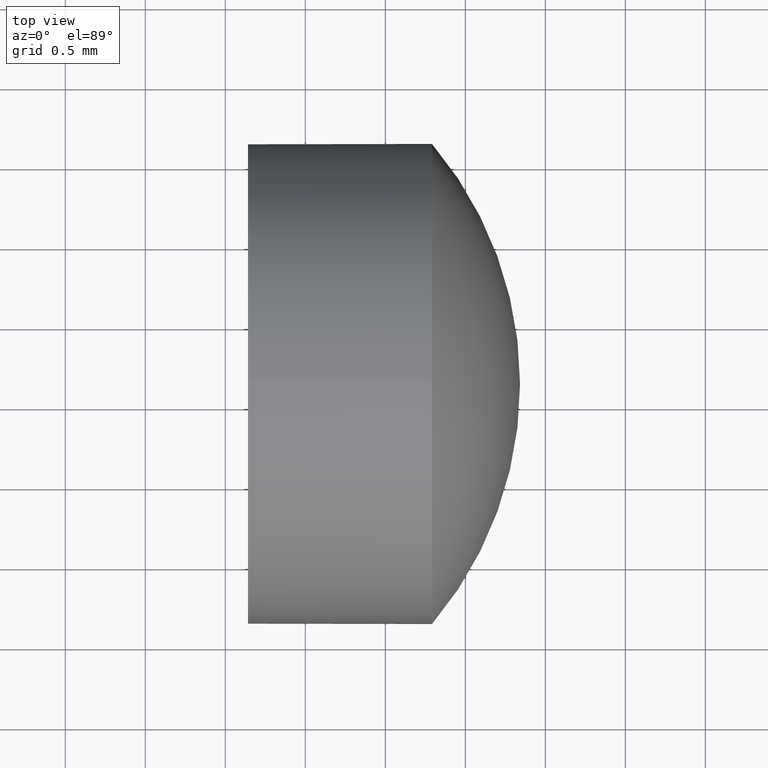
[diagram: clean part render]
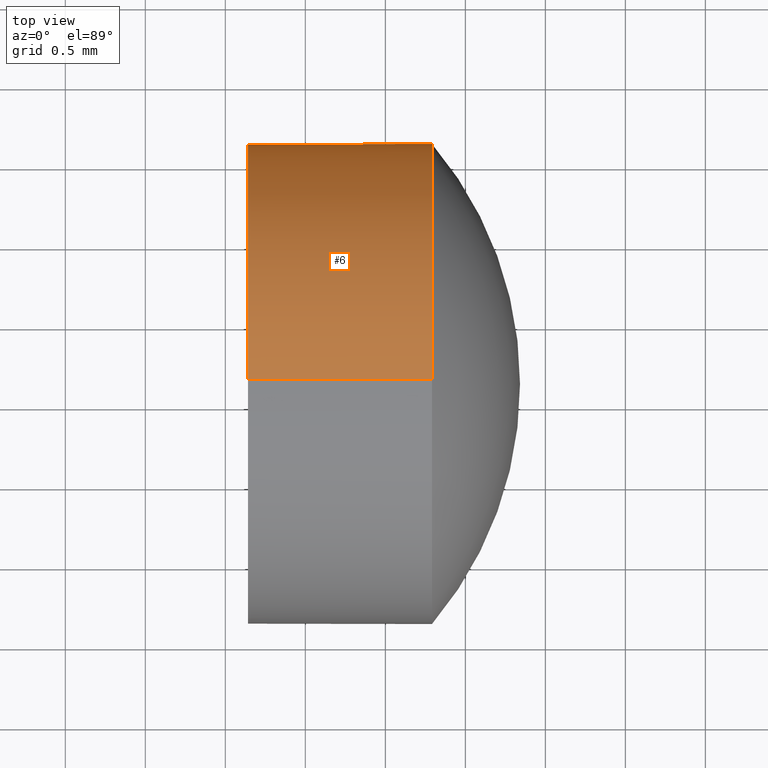
[diagram: same view with one face highlighted and labeled with its STEP entity id]
A machine part, top view. The second image highlights one B-rep face of the part: STEP entity #6.
In plain terms, the highlighted cylindrical surface (partial cylindrical patch) has radius 1.5 mm, axis along (-1, -0, -0).
Its self-contained STEP definition (entity closure, byte-faithful):
#1 = EDGE_CURVE ( 'NONE', #60, #130, #117, .T. ) ;
#2 = FACE_OUTER_BOUND ( 'NONE', #150, .T. ) ;
#6 = ADVANCED_FACE ( 'NONE', ( #2 ), #182, .T. ) ;
#14 = LINE ( 'NONE', #21, #79 ) ;
#16 = AXIS2_PLACEMENT_3D ( 'NONE', #86, #154, #159 ) ;
#17 = EDGE_CURVE ( 'NONE', #130, #146, #69, .T. ) ;
#18 = ORIENTED_EDGE ( 'NONE', *, *, #1, .T. ) ;
#21 = CARTESIAN_POINT ( 'NONE',  ( 657.7378520608252800, -16.36571679359241200, -1.499999999999999600 ) ) ;
#25 = DIRECTION ( 'NONE',  ( -1.000000000000000000, -0.0000000000000000000, -0.0000000000000000000 ) ) ;
#29 = DIRECTION ( 'NONE',  ( 0.0000000000000000000, 0.0000000000000000000, 1.000000000000000000 ) ) ;
#30 = DIRECTION ( 'NONE',  ( -1.000000000000000000, -0.0000000000000000000, -0.0000000000000000000 ) ) ;
#37 = CARTESIAN_POINT ( 'NONE',  ( 657.7378520608252800, -16.36571679359241200, 1.499999999999999600 ) ) ;
#45 = CIRCLE ( 'NONE', #148, 1.499999999999999600 ) ;
#47 = CARTESIAN_POINT ( 'NONE',  ( 659.2915812099703300, -16.36571679359241200, 0.0000000000000000000 ) ) ;
#49 = CARTESIAN_POINT ( 'NONE',  ( 659.2915812099703300, -16.36571679359241200, 1.499999999999999600 ) ) ;
#53 = VERTEX_POINT ( 'NONE', #103 ) ;
#58 = ORIENTED_EDGE ( 'NONE', *, *, #78, .T. ) ;
#60 = VERTEX_POINT ( 'NONE', #49 ) ;
#63 = VECTOR ( 'NONE', #25, 1000.000000000000000 ) ;
#64 = CARTESIAN_POINT ( 'NONE',  ( 659.2915812099703300, -14.86571679359239800, 0.0000000000000000000 ) ) ;
#68 = ORIENTED_EDGE ( 'NONE', *, *, #101, .F. ) ;
#69 = CIRCLE ( 'NONE', #179, 1.499999999999999600 ) ;
#72 = CARTESIAN_POINT ( 'NONE',  ( 657.7378520608252800, -16.36571679359241200, 0.0000000000000000000 ) ) ;
#77 = ORIENTED_EDGE ( 'NONE', *, *, #118, .F. ) ;
#78 = EDGE_CURVE ( 'NONE', #146, #83, #14, .T. ) ;
#79 = VECTOR ( 'NONE', #30, 1000.000000000000000 ) ;
#83 = VERTEX_POINT ( 'NONE', #137 ) ;
#86 = CARTESIAN_POINT ( 'NONE',  ( 659.2915812099703300, -16.36571679359241200, 0.0000000000000000000 ) ) ;
#92 = DIRECTION ( 'NONE',  ( -1.000000000000000000, -0.0000000000000000000, -0.0000000000000000000 ) ) ;
#93 = DIRECTION ( 'NONE',  ( 0.0000000000000000000, 0.0000000000000000000, 1.000000000000000000 ) ) ;
#101 = EDGE_CURVE ( 'NONE', #53, #83, #45, .T. ) ;
#103 = CARTESIAN_POINT ( 'NONE',  ( 658.1415812099703500, -16.36571679359241200, 1.499999999999999600 ) ) ;
#117 = CIRCLE ( 'NONE', #16, 1.499999999999999600 ) ;
#118 = EDGE_CURVE ( 'NONE', #60, #53, #145, .T. ) ;
#119 = DIRECTION ( 'NONE',  ( -1.000000000000000000, -0.0000000000000000000, -0.0000000000000000000 ) ) ;
#130 = VERTEX_POINT ( 'NONE', #64 ) ;
#137 = CARTESIAN_POINT ( 'NONE',  ( 658.1415812099703500, -16.36571679359241200, -1.499999999999999600 ) ) ;
#144 = AXIS2_PLACEMENT_3D ( 'NONE', #72, #169, #181 ) ;
#145 = LINE ( 'NONE', #37, #63 ) ;
#146 = VERTEX_POINT ( 'NONE', #165 ) ;
#148 = AXIS2_PLACEMENT_3D ( 'NONE', #176, #92, #93 ) ;
#150 = EDGE_LOOP ( 'NONE', ( #178, #58, #68, #77, #18 ) ) ;
#154 = DIRECTION ( 'NONE',  ( -1.000000000000000000, -0.0000000000000000000, -0.0000000000000000000 ) ) ;
#159 = DIRECTION ( 'NONE',  ( 0.0000000000000000000, 0.0000000000000000000, 1.000000000000000000 ) ) ;
#165 = CARTESIAN_POINT ( 'NONE',  ( 659.2915812099703300, -16.36571679359241200, -1.499999999999999600 ) ) ;
#169 = DIRECTION ( 'NONE',  ( -1.000000000000000000, -0.0000000000000000000, -0.0000000000000000000 ) ) ;
#176 = CARTESIAN_POINT ( 'NONE',  ( 658.1415812099703500, -16.36571679359241200, 0.0000000000000000000 ) ) ;
#178 = ORIENTED_EDGE ( 'NONE', *, *, #17, .T. ) ;
#179 = AXIS2_PLACEMENT_3D ( 'NONE', #47, #119, #29 ) ;
#181 = DIRECTION ( 'NONE',  ( 0.0000000000000000000, 0.0000000000000000000, 1.000000000000000000 ) ) ;
#182 = CYLINDRICAL_SURFACE ( 'NONE', #144, 1.499999999999999600 ) ;